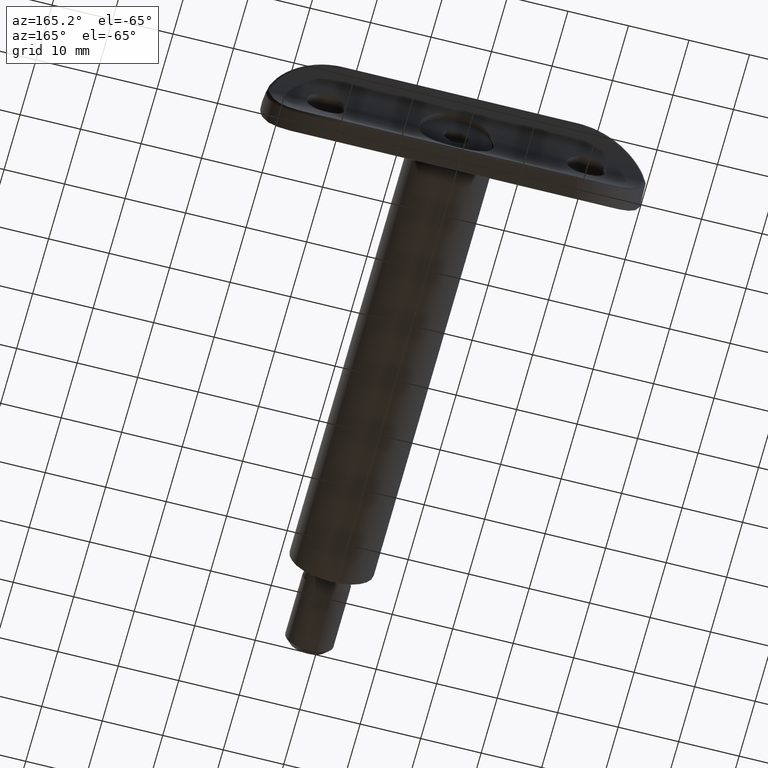
[diagram: clean part render]
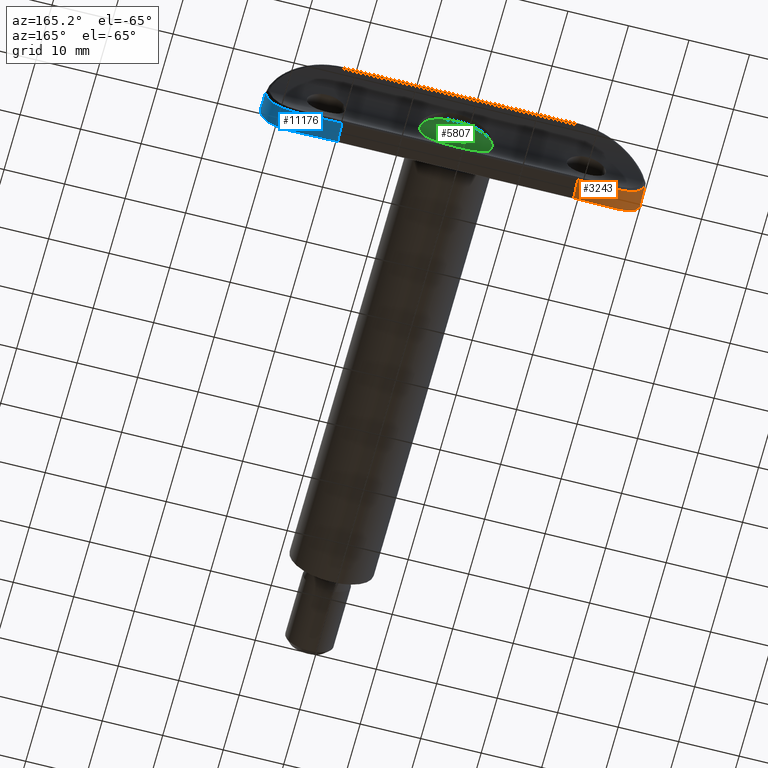
[diagram: same view with three faces highlighted in distinct colors, each labeled with its STEP entity id]
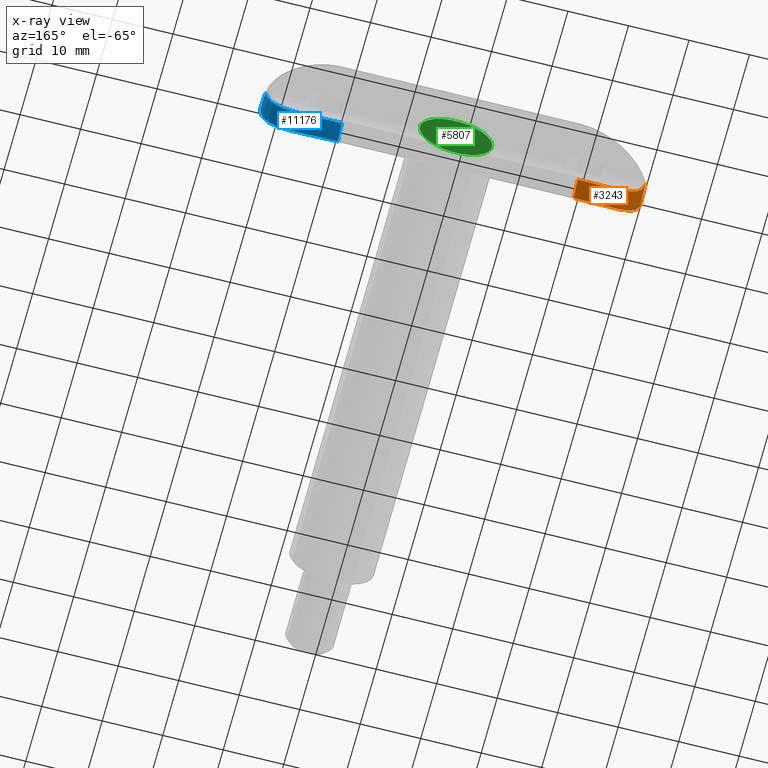
[diagram: x-ray of the same camera — body ghosted, the three highlighted faces saturated]
A machine part, auxiliary view with three faces highlighted in distinct colors.
The next image is the same camera in x-ray (body ghosted, the three faces saturated) — at least one of them is partly hidden behind the body in this view.
Their STEP definitions:

[orange] entity #3243 — the highlighted cylindrical surface (partial cylindrical patch) has radius 12 mm, axis along (-0, 0.8741, 0.4858).
#11 = CARTESIAN_POINT ( 'NONE',  ( -6.665760389367133800, 0.6098249306462646400, 28.62862387784112200 ) ) ;
#161 = CARTESIAN_POINT ( 'NONE',  ( -6.158843963928775100, -2.729662869301814800, 30.05830163374237100 ) ) ;
#163 = CARTESIAN_POINT ( 'NONE',  ( -2.905809991406901500, -0.2520860244392662000, 30.79258430663401900 ) ) ;
#437 = DIRECTION ( 'NONE',  ( 0.4858299595141704600, 0.8740533453047700800, -0.0000000000000000000 ) ) ;
#724 = CARTESIAN_POINT ( 'NONE',  ( -8.732631405510838700, 1.380105572080481300, 26.13792390336022800 ) ) ;
#1331 = CARTESIAN_POINT ( 'NONE',  ( -7.468358965609681400, -2.346049953370365600, 29.19099359684591400 ) ) ;
#1427 = CARTESIAN_POINT ( 'NONE',  ( -10.29759581758889200, 2.112088555418217600, 22.07087987615993200 ) ) ;
#1647 = CARTESIAN_POINT ( 'NONE',  ( -11.92859431294146000, -0.4292547332370194600, 21.11482056701557000 ) ) ;
#2049 = CARTESIAN_POINT ( 'NONE',  ( 1.609570849379558000E-015, -2.486856761535511900, 31.50000000000000000 ) ) ;
#2516 = CARTESIAN_POINT ( 'NONE',  ( -8.077189355929988300, -2.144204123385022400, 28.69694654420741000 ) ) ;
#2519 = CARTESIAN_POINT ( 'NONE',  ( -1.835189502875482500, -0.3711457551946625300, 31.09134747255644600 ) ) ;
#2528 = B_SPLINE_CURVE_WITH_KNOTS ( 'NONE', 3,
 ( #14187, #12949, #4734, #8330, #4790, #9551, #8274, #14088, #161, #2620, #1331, #2516, #10610, #3694, #8383, #11761, #7212, #13202, #6247, #5090, #8642, #1647, #2710, #3800 ),
 .UNSPECIFIED., .F., .F.,
 ( 4, 2, 2, 2, 2, 2, 2, 2, 2, 2, 2, 4 ),
 ( 2.761428510983103300E-018, 0.002407596472457986900, 0.003611394708686980600, 0.004815192944915973800, 0.007222789417373963800, 0.008426587653602961000, 0.009630385889831958100, 0.01083418412606095400, 0.01203798236228994900, 0.01444557883474794100, 0.01685317530720592900, 0.01926077177966392000 ),
 .UNSPECIFIED. ) ;
#2609 = DIRECTION ( 'NONE',  ( 0.4858299595141704100, 0.8740533453047699700, -0.0000000000000000000 ) ) ;
#2620 = CARTESIAN_POINT ( 'NONE',  ( -7.147371149447642400, -2.445773758848735400, 29.42307681136128400 ) ) ;
#2664 = EDGE_CURVE ( 'NONE', #14870, #8764, #5396, .T. ) ;
#2710 = CARTESIAN_POINT ( 'NONE',  ( -12.00000000000000400, -0.3891176290278253700, 20.31369094222388200 ) ) ;
#2903 = CARTESIAN_POINT ( 'NONE',  ( -7.894751655761197600, 1.043563230655474700, 27.32195453554993800 ) ) ;
#3243 = ADVANCED_FACE ( 'NONE', ( #9333 ), #4090, .T. ) ;
#3327 = CARTESIAN_POINT ( 'NONE',  ( 2.995621684029787500E-015, -3.499999999999999600, 31.50000000000000000 ) ) ;
#3380 = CARTESIAN_POINT ( 'NONE',  ( -9.569349463060191900, 1.752852787617586100, 24.53899358220071000 ) ) ;
#3433 = CARTESIAN_POINT ( 'NONE',  ( -4.567942503128782600, 0.05582271291679315900, 30.05491169464929200 ) ) ;
#3552 = EDGE_CURVE ( 'NONE', #8343, #14008, #2528, .T. ) ;
#3694 = CARTESIAN_POINT ( 'NONE',  ( -8.911261608662785600, -1.838321853592154600, 27.88239206832154700 ) ) ;
#3800 = CARTESIAN_POINT ( 'NONE',  ( -12.00000000000000700, -0.3891176290278207700, 19.50000000000000000 ) ) ;
#3980 = EDGE_LOOP ( 'NONE', ( #9834, #7622, #13824, #4207 ) ) ;
#4090 = CYLINDRICAL_SURFACE ( 'NONE', #6663, 12.00000000000000200 ) ;
#4207 = ORIENTED_EDGE ( 'NONE', *, *, #3552, .F. ) ;
#4414 = EDGE_CURVE ( 'NONE', #14008, #8764, #7863, .T. ) ;
#4734 = CARTESIAN_POINT ( 'NONE',  ( -1.613878791505604100, -3.459937399638179900, 31.43733599986672900 ) ) ;
#4790 = CARTESIAN_POINT ( 'NONE',  ( -3.186978305075533600, -3.296663330154676600, 31.15440249755115000 ) ) ;
#4793 = CARTESIAN_POINT ( 'NONE',  ( -1.471476261503990200, -0.4031192296362737800, 31.17588060939954500 ) ) ;
#5090 = CARTESIAN_POINT ( 'NONE',  ( -11.42949741348638200, -0.6987825248718139100, 23.47544721763575400 ) ) ;
#5396 = B_SPLINE_CURVE_WITH_KNOTS ( 'NONE', 3,
 ( #11707, #14032, #11550, #4793, #2519, #163, #8116, #3433, #11500, #12691, #5795, #11, #6459, #2903, #14520, #6221, #724, #6413, #3380, #5500, #6040, #14173, #1427, #14072, #14225, #11859 ),
 .UNSPECIFIED., .F., .F.,
 ( 4, 2, 2, 2, 2, 2, 2, 2, 2, 2, 2, 2, 4 ),
 ( 0.0000000000000000000, 0.001118234125172537300, 0.002236468250345073400, 0.004472936500690145000, 0.005591170625862681500, 0.006709404751035217900, 0.008945873001380291700, 0.01006410712655283000, 0.01118234125172537000, 0.01341880950207044800, 0.01453704362724298600, 0.01565527775241552400, 0.01789174600276060400 ),
 .UNSPECIFIED. ) ;
#5500 = CARTESIAN_POINT ( 'NONE',  ( -9.933564340798488600, 1.929111303165165400, 23.49922711695878200 ) ) ;
#5582 = CARTESIAN_POINT ( 'NONE',  ( 2.995621684029787500E-015, -3.499999999999999600, 31.50000000000000000 ) ) ;
#5591 = CARTESIAN_POINT ( 'NONE',  ( -10.53971119023871800, 2.238077944829623500, 19.50000000000000000 ) ) ;
#5795 = CARTESIAN_POINT ( 'NONE',  ( -5.807837735107587400, 0.3617548896867339200, 29.28748829787575400 ) ) ;
#6040 = CARTESIAN_POINT ( 'NONE',  ( -10.04062280470157400, 1.982199962630014400, 23.14366967859937300 ) ) ;
#6221 = CARTESIAN_POINT ( 'NONE',  ( -8.538757616669153400, 1.298744972214027800, 26.44274779239512400 ) ) ;
#6247 = CARTESIAN_POINT ( 'NONE',  ( -10.86486654361805800, -0.9843359645018935300, 24.95505419486225000 ) ) ;
#6413 = CARTESIAN_POINT ( 'NONE',  ( -9.269901498195483900, 1.612828249825283700, 25.19844563057117900 ) ) ;
#6459 = CARTESIAN_POINT ( 'NONE',  ( -7.186626295999051500, 0.7838569578975428400, 28.13755154511082100 ) ) ;
#6663 = AXIS2_PLACEMENT_3D ( 'NONE', #7334, #437, #11892 ) ;
#7212 = CARTESIAN_POINT ( 'NONE',  ( -9.882580253765651100, -1.437978920396825600, 26.65824030469761800 ) ) ;
#7334 = CARTESIAN_POINT ( 'NONE',  ( -1.511359856342760800, -6.219077143197870000, 19.50000000000000000 ) ) ;
#7622 = ORIENTED_EDGE ( 'NONE', *, *, #2664, .T. ) ;
#7752 = EDGE_CURVE ( 'NONE', #8343, #14870, #11431, .T. ) ;
#7758 = CARTESIAN_POINT ( 'NONE',  ( 1.160008762117916300E-015, -1.475628161315683400, 31.46975366199063400 ) ) ;
#7863 = LINE ( 'NONE', #10756, #12769 ) ;
#8116 = CARTESIAN_POINT ( 'NONE',  ( -3.589126953104931200, -0.1425766935508017400, 30.53490663537367700 ) ) ;
#8216 = CARTESIAN_POINT ( 'NONE',  ( 7.129970309379851900E-016, -0.4701362392625545400, 31.40937530504015700 ) ) ;
#8274 = CARTESIAN_POINT ( 'NONE',  ( -4.345683333910672600, -3.117644390435899000, 30.82586979659556200 ) ) ;
#8330 = CARTESIAN_POINT ( 'NONE',  ( -2.796109589762971700, -3.344419946068632600, 31.23832297120842600 ) ) ;
#8343 = VERTEX_POINT ( 'NONE', #3327 ) ;
#8370 = CARTESIAN_POINT ( 'NONE',  ( -12.00000000000000700, -0.3891176290278207700, 19.50000000000000000 ) ) ;
#8383 = CARTESIAN_POINT ( 'NONE',  ( -9.168815601873276900, -1.736688008828346300, 27.59147257706480600 ) ) ;
#8642 = CARTESIAN_POINT ( 'NONE',  ( -11.64506833623742700, -0.5832138593540825400, 22.69272106915794400 ) ) ;
#8764 = VERTEX_POINT ( 'NONE', #5591 ) ;
#9333 = FACE_OUTER_BOUND ( 'NONE', #3980, .T. ) ;
#9551 = CARTESIAN_POINT ( 'NONE',  ( -3.961919930534433000, -3.183324947430795900, 30.94830242344761800 ) ) ;
#9834 = ORIENTED_EDGE ( 'NONE', *, *, #7752, .T. ) ;
#10610 = CARTESIAN_POINT ( 'NONE',  ( -8.365447555507350000, -2.042077026027281100, 28.43512920070712700 ) ) ;
#10756 = CARTESIAN_POINT ( 'NONE',  ( -12.00000000000000200, -0.3891176290278242100, 19.50000000000000000 ) ) ;
#11431 =( BOUNDED_CURVE ( )  B_SPLINE_CURVE ( 3, ( #5582, #2049, #7758, #14729 ),
 .UNSPECIFIED., .F., .T. ) 
 B_SPLINE_CURVE_WITH_KNOTS ( ( 4, 4 ),
 ( 4.712388980384689700, 4.835365260207421300 ),
 .UNSPECIFIED. ) 
 CURVE ( )  GEOMETRIC_REPRESENTATION_ITEM ( )  RATIONAL_B_SPLINE_CURVE ( ( 1.000000000000000000, 0.9987401332329100000, 0.9987401332329100000, 1.000000000000000000 ) ) 
 REPRESENTATION_ITEM ( '' )  );
#11500 = CARTESIAN_POINT ( 'NONE',  ( -4.886493709250094900, 0.1276570117640371300, 29.87927491249999100 ) ) ;
#11550 = CARTESIAN_POINT ( 'NONE',  ( -0.7404109976856231300, -0.4496605161124915800, 31.31444628284846100 ) ) ;
#11707 = CARTESIAN_POINT ( 'NONE',  ( 7.129970309379851900E-016, -0.4701362392625545400, 31.40937530504015700 ) ) ;
#11761 = CARTESIAN_POINT ( 'NONE',  ( -9.653965207986141600, -1.536749814308947700, 26.98022621720532400 ) ) ;
#11859 = CARTESIAN_POINT ( 'NONE',  ( -10.53971119023871800, 2.238077944829623500, 19.50000000000000000 ) ) ;
#11892 = DIRECTION ( 'NONE',  ( -0.8740533453047699700, 0.4858299595141704100, 0.0000000000000000000 ) ) ;
#12691 = CARTESIAN_POINT ( 'NONE',  ( -5.507687913038743900, 0.2809070737397239600, 29.49489296990413600 ) ) ;
#12769 = VECTOR ( 'NONE', #2609, 1000.000000000000100 ) ;
#12949 = CARTESIAN_POINT ( 'NONE',  ( -0.8129412476029729300, -3.500000000000002200, 31.50000000000000000 ) ) ;
#13202 = CARTESIAN_POINT ( 'NONE',  ( -10.51579242464841000, -1.154463491023568500, 25.65865357391694000 ) ) ;
#13824 = ORIENTED_EDGE ( 'NONE', *, *, #4414, .F. ) ;
#14008 = VERTEX_POINT ( 'NONE', #8370 ) ;
#14032 = CARTESIAN_POINT ( 'NONE',  ( -0.3717157821171455700, -0.4643916539096149000, 31.36887278765310300 ) ) ;
#14072 = CARTESIAN_POINT ( 'NONE',  ( -10.47855176280992900, 2.205503992355605000, 20.98378448394306200 ) ) ;
#14088 = CARTESIAN_POINT ( 'NONE',  ( -5.458459083564780400, -2.901169967168793800, 30.40738950800777100 ) ) ;
#14173 = CARTESIAN_POINT ( 'NONE',  ( -10.22228452745750000, 2.073518088803384200, 22.43040518664165700 ) ) ;
#14187 = CARTESIAN_POINT ( 'NONE',  ( 2.995621684029787500E-015, -3.499999999999999600, 31.50000000000000000 ) ) ;
#14225 = CARTESIAN_POINT ( 'NONE',  ( -10.53971119023871900, 2.238077944829626600, 20.24777137648276000 ) ) ;
#14520 = CARTESIAN_POINT ( 'NONE',  ( -8.119630012388045200, 1.130367664769257300, 27.03523480616932400 ) ) ;
#14729 = CARTESIAN_POINT ( 'NONE',  ( 7.129970309379851900E-016, -0.4701362392625545400, 31.40937530504015700 ) ) ;
#14870 = VERTEX_POINT ( 'NONE', #8216 ) ;

[blue] entity #11176 — the highlighted cylindrical surface (partial cylindrical patch) has radius 12 mm, axis along (0, -0.8741, -0.4858).
#12 = CARTESIAN_POINT ( 'NONE',  ( -1.835189502875486800, -0.3711457551946608600, -31.09134747255645000 ) ) ;
#66 = CARTESIAN_POINT ( 'NONE',  ( -1.471476261503997600, -0.4031192296362751700, -31.17588060939954500 ) ) ;
#118 = CARTESIAN_POINT ( 'NONE',  ( -3.589126953104938300, -0.1425766935507997200, -30.53490663537369400 ) ) ;
#295 = CARTESIAN_POINT ( 'NONE',  ( -10.53971119023871800, 2.238077944829623100, -19.50000000000000000 ) ) ;
#664 = B_SPLINE_CURVE_WITH_KNOTS ( 'NONE', 3,
 ( #3306, #3411, #12570, #8006, #13758, #7959, #1003, #4520, #12615, #9131, #12670, #2189, #3359, #10280, #11427, #13812, #6838, #15018, #1106, #9220, #8363, #9326, #12980, #9425 ),
 .UNSPECIFIED., .F., .F.,
 ( 4, 2, 2, 2, 2, 2, 2, 2, 2, 2, 2, 4 ),
 ( 3.476216610979977100E-018, 0.002406580534152875300, 0.003609870801229310600, 0.004813161068305746300, 0.007219741602458626400, 0.008423031869535066400, 0.009626322136611503000, 0.01203290267076437100, 0.01443948320491723900, 0.01564277347199367200, 0.01684606373907010500, 0.01925264427322297800 ),
 .UNSPECIFIED. ) ;
#776 = CYLINDRICAL_SURFACE ( 'NONE', #13109, 12.00000000000000000 ) ;
#981 = CARTESIAN_POINT ( 'NONE',  ( -10.22228452745750400, 2.073518088803386000, -22.43040518664165000 ) ) ;
#1003 = CARTESIAN_POINT ( 'NONE',  ( -11.29067707203921100, -0.7689707214613790100, -23.83865606415823300 ) ) ;
#1099 = VERTEX_POINT ( 'NONE', #4711 ) ;
#1106 = CARTESIAN_POINT ( 'NONE',  ( -3.975921368411834400, -3.181057464200420800, -30.94410955837537000 ) ) ;
#1130 = CARTESIAN_POINT ( 'NONE',  ( -5.807837735107590900, 0.3617548896867360300, -29.28748829787575400 ) ) ;
#1726 = CARTESIAN_POINT ( 'NONE',  ( -9.269901498195489300, 1.612828249825284600, -25.19844563057117900 ) ) ;
#2189 = CARTESIAN_POINT ( 'NONE',  ( -9.174398946052685100, -1.734467328778706900, -27.58503671903728000 ) ) ;
#2211 = CARTESIAN_POINT ( 'NONE',  ( -10.53971119023871800, 2.238077944829623100, -19.50000000000000000 ) ) ;
#2332 = B_SPLINE_CURVE_WITH_KNOTS ( 'NONE', 3,
 ( #2211, #4450, #12545, #7941, #981, #9106, #5522, #2491, #1726, #14705, #9392, #12692, #10408, #4685, #11604, #1130, #12902, #7111, #8117, #118, #2520, #12, #66, #9449, #8170, #3645 ),
 .UNSPECIFIED., .F., .F.,
 ( 4, 2, 2, 2, 2, 2, 2, 2, 2, 2, 2, 2, 4 ),
 ( 0.0000000000000000000, 0.002211687512370214800, 0.003317531268555321900, 0.004423375024740429500, 0.006635062537110645600, 0.007740906293295753700, 0.008846750049480862600, 0.01105843756185108000, 0.01216428131803618800, 0.01327012507422129600, 0.01548181258659150900, 0.01658765634277661900, 0.01769350009896172500 ),
 .UNSPECIFIED. ) ;
#2491 = CARTESIAN_POINT ( 'NONE',  ( -9.569349463060195400, 1.752852787617590800, -24.53899358220071700 ) ) ;
#2520 = CARTESIAN_POINT ( 'NONE',  ( -2.905809991406906000, -0.2520860244392645300, -30.79258430663402300 ) ) ;
#2992 =( BOUNDED_CURVE ( )  B_SPLINE_CURVE ( 3, ( #11050, #14960, #5568, #8926 ),
 .UNSPECIFIED., .F., .T. ) 
 B_SPLINE_CURVE_WITH_KNOTS ( ( 4, 4 ),
 ( 1.447820046972164900, 1.570796326794896600 ),
 .UNSPECIFIED. ) 
 CURVE ( )  GEOMETRIC_REPRESENTATION_ITEM ( )  RATIONAL_B_SPLINE_CURVE ( ( 1.000000000000000000, 0.9987401332329100000, 0.9987401332329100000, 1.000000000000000000 ) ) 
 REPRESENTATION_ITEM ( '' )  );
#3306 = CARTESIAN_POINT ( 'NONE',  ( -12.00000000000000700, -0.3891176290278207700, -19.50000000000000400 ) ) ;
#3359 = CARTESIAN_POINT ( 'NONE',  ( -8.916507318172458300, -1.836285184458887900, -27.87664932174586200 ) ) ;
#3411 = CARTESIAN_POINT ( 'NONE',  ( -12.00000000000000200, -0.3891176290278237600, -20.31369584259641300 ) ) ;
#3502 = LINE ( 'NONE', #10568, #9110 ) ;
#3503 = DIRECTION ( 'NONE',  ( -0.4858299595141704100, -0.8740533453047699700, -0.0000000000000000000 ) ) ;
#3645 = CARTESIAN_POINT ( 'NONE',  ( -4.165912745246785100E-015, -0.4701362392625519400, -31.40937530504016500 ) ) ;
#3910 = EDGE_CURVE ( 'NONE', #7657, #1099, #2992, .T. ) ;
#4450 = CARTESIAN_POINT ( 'NONE',  ( -10.53971119023871200, 2.238077944829627100, -20.24777137648276300 ) ) ;
#4520 = CARTESIAN_POINT ( 'NONE',  ( -10.86687449944537300, -0.9833561896143341300, -24.95091473416315600 ) ) ;
#4685 = CARTESIAN_POINT ( 'NONE',  ( -7.186626295999050600, 0.7838569578975430600, -28.13755154511081000 ) ) ;
#4711 = CARTESIAN_POINT ( 'NONE',  ( -5.975428329596222400E-016, -3.499999999999999600, -31.50000000000000000 ) ) ;
#4725 = EDGE_LOOP ( 'NONE', ( #12044, #7360, #5253, #14941 ) ) ;
#5253 = ORIENTED_EDGE ( 'NONE', *, *, #3910, .T. ) ;
#5375 = EDGE_CURVE ( 'NONE', #9900, #7657, #2332, .T. ) ;
#5476 = CARTESIAN_POINT ( 'NONE',  ( -4.165912745246785100E-015, -0.4701362392625519400, -31.40937530504016500 ) ) ;
#5522 = CARTESIAN_POINT ( 'NONE',  ( -9.933564340798483300, 1.929111303165169200, -23.49922711695876700 ) ) ;
#5568 = CARTESIAN_POINT ( 'NONE',  ( -3.269338926805214500E-015, -2.486856761535503900, -31.50000000000000000 ) ) ;
#5637 = DIRECTION ( 'NONE',  ( -0.4858299595141704600, -0.8740533453047700800, 0.0000000000000000000 ) ) ;
#6838 = CARTESIAN_POINT ( 'NONE',  ( -5.463922679457850200, -2.899855688073363700, -30.40472026188329100 ) ) ;
#6895 = CARTESIAN_POINT ( 'NONE',  ( 10.48864014365724600, 15.37004048582995000, -19.50000000000000000 ) ) ;
#7111 = CARTESIAN_POINT ( 'NONE',  ( -4.886493709250094900, 0.1276570117640421500, -29.87927491249998700 ) ) ;
#7303 = CARTESIAN_POINT ( 'NONE',  ( -12.00000000000000700, -0.3891176290278207700, -19.50000000000000400 ) ) ;
#7360 = ORIENTED_EDGE ( 'NONE', *, *, #5375, .T. ) ;
#7657 = VERTEX_POINT ( 'NONE', #5476 ) ;
#7941 = CARTESIAN_POINT ( 'NONE',  ( -10.29759581758889400, 2.112088555418218900, -22.07087987615993200 ) ) ;
#7959 = CARTESIAN_POINT ( 'NONE',  ( -11.41587513011002000, -0.7039332646957846600, -23.45570776623293000 ) ) ;
#8006 = CARTESIAN_POINT ( 'NONE',  ( -11.71699478268041800, -0.5441595704861782500, -22.29309573292401600 ) ) ;
#8117 = CARTESIAN_POINT ( 'NONE',  ( -4.567942503128787000, 0.05582271291679522700, -30.05491169464929200 ) ) ;
#8170 = CARTESIAN_POINT ( 'NONE',  ( -0.3717157821171792600, -0.4643916539096182800, -31.36887278765310700 ) ) ;
#8215 = FACE_OUTER_BOUND ( 'NONE', #4725, .T. ) ;
#8363 = CARTESIAN_POINT ( 'NONE',  ( -2.804642605329985100, -3.343479015047385400, -31.23668300403215200 ) ) ;
#8926 = CARTESIAN_POINT ( 'NONE',  ( -5.975428329596222400E-016, -3.499999999999999600, -31.50000000000000000 ) ) ;
#9106 = CARTESIAN_POINT ( 'NONE',  ( -10.04062280470157700, 1.982199962630015700, -23.14366967859936300 ) ) ;
#9110 = VECTOR ( 'NONE', #3503, 1000.000000000000100 ) ;
#9131 = CARTESIAN_POINT ( 'NONE',  ( -9.890151245574543300, -1.434654235787247600, -26.64699636764817100 ) ) ;
#9220 = CARTESIAN_POINT ( 'NONE',  ( -3.199605881044096800, -3.295028801910499600, -31.15149741152382700 ) ) ;
#9326 = CARTESIAN_POINT ( 'NONE',  ( -1.616414263079185100, -3.459901341102897800, -31.43731128375658900 ) ) ;
#9392 = CARTESIAN_POINT ( 'NONE',  ( -8.538757616669148100, 1.298744972214027000, -26.44274779239511400 ) ) ;
#9425 = CARTESIAN_POINT ( 'NONE',  ( -5.975428329596222400E-016, -3.499999999999999600, -31.50000000000000000 ) ) ;
#9449 = CARTESIAN_POINT ( 'NONE',  ( -0.7404109976856301200, -0.4496605161124934100, -31.31444628284844400 ) ) ;
#9685 = EDGE_CURVE ( 'NONE', #13935, #1099, #664, .T. ) ;
#9900 = VERTEX_POINT ( 'NONE', #295 ) ;
#10280 = CARTESIAN_POINT ( 'NONE',  ( -8.099404966363247000, -2.141546448550109400, -28.70539369568060200 ) ) ;
#10408 = CARTESIAN_POINT ( 'NONE',  ( -7.894751655761195900, 1.043563230655475400, -27.32195453554993800 ) ) ;
#10568 = CARTESIAN_POINT ( 'NONE',  ( -12.00000000000000200, -0.3891176290278256000, -19.50000000000000000 ) ) ;
#11050 = CARTESIAN_POINT ( 'NONE',  ( -4.165912745246785100E-015, -0.4701362392625519400, -31.40937530504016500 ) ) ;
#11176 = ADVANCED_FACE ( 'NONE', ( #8215 ), #776, .T. ) ;
#11427 = CARTESIAN_POINT ( 'NONE',  ( -7.497033304171731400, -2.344925040722428000, -29.19690548182576300 ) ) ;
#11604 = CARTESIAN_POINT ( 'NONE',  ( -6.665760389367135600, 0.6098249306462666400, -28.62862387784112200 ) ) ;
#12044 = ORIENTED_EDGE ( 'NONE', *, *, #14506, .F. ) ;
#12545 = CARTESIAN_POINT ( 'NONE',  ( -10.47855176280993200, 2.205503992355606300, -20.98378448394305500 ) ) ;
#12570 = CARTESIAN_POINT ( 'NONE',  ( -11.92859548616417700, -0.4292482158758177400, -21.11347366024902800 ) ) ;
#12615 = CARTESIAN_POINT ( 'NONE',  ( -10.51842810678145000, -1.153150254458435800, -25.65304723848730700 ) ) ;
#12670 = CARTESIAN_POINT ( 'NONE',  ( -9.661430124385194800, -1.533590909220056600, -26.97020615263073800 ) ) ;
#12692 = CARTESIAN_POINT ( 'NONE',  ( -8.119630012388043400, 1.130367664769256400, -27.03523480616932100 ) ) ;
#12902 = CARTESIAN_POINT ( 'NONE',  ( -5.507687913038745700, 0.2809070737397288400, -29.49489296990413600 ) ) ;
#12980 = CARTESIAN_POINT ( 'NONE',  ( -0.8132883673673631000, -3.499999999999998700, -31.49999999999999300 ) ) ;
#13109 = AXIS2_PLACEMENT_3D ( 'NONE', #6895, #5637, #13769 ) ;
#13758 = CARTESIAN_POINT ( 'NONE',  ( -11.62887820642736400, -0.5915967544966716000, -22.68293612948989900 ) ) ;
#13769 = DIRECTION ( 'NONE',  ( 0.8740533453047699700, -0.4858299595141704600, 0.0000000000000000000 ) ) ;
#13812 = CARTESIAN_POINT ( 'NONE',  ( -6.166834720918711100, -2.727790392386203700, -30.05461524013827600 ) ) ;
#13935 = VERTEX_POINT ( 'NONE', #7303 ) ;
#14506 = EDGE_CURVE ( 'NONE', #9900, #13935, #3502, .T. ) ;
#14705 = CARTESIAN_POINT ( 'NONE',  ( -8.732631405510836900, 1.380105572080482000, -26.13792390336022800 ) ) ;
#14941 = ORIENTED_EDGE ( 'NONE', *, *, #9685, .F. ) ;
#14960 = CARTESIAN_POINT ( 'NONE',  ( -3.718901014066856800E-015, -1.475628161315674100, -31.46975366199063700 ) ) ;
#15018 = CARTESIAN_POINT ( 'NONE',  ( -4.354802112542866900, -3.115994167807660800, -30.82274288943988300 ) ) ;

[green] entity #5807 — the highlighted planar face has unit normal (-0, 1, -0).
#172 = ORIENTED_EDGE ( 'NONE', *, *, #1790, .T. ) ;
#407 = DIRECTION ( 'NONE',  ( -1.000000000000000000, 0.0000000000000000000, 0.0000000000000000000 ) ) ;
#421 = ORIENTED_EDGE ( 'NONE', *, *, #488, .F. ) ;
#488 = EDGE_CURVE ( 'NONE', #1836, #12290, #12099, .T. ) ;
#853 = CARTESIAN_POINT ( 'NONE',  ( 1.154700538379251700, 1.999999999999999100, 0.0000000000000000000 ) ) ;
#1790 = EDGE_CURVE ( 'NONE', #13278, #13278, #7354, .T. ) ;
#1836 = VERTEX_POINT ( 'NONE', #10634 ) ;
#2060 = FACE_BOUND ( 'NONE', #5797, .T. ) ;
#2479 = CARTESIAN_POINT ( 'NONE',  ( -1.154700538379252400, 1.999999999999999600, 0.0000000000000000000 ) ) ;
#2554 = CARTESIAN_POINT ( 'NONE',  ( -2.309401076758504700, -1.752598683377171700E-015, 0.0000000000000000000 ) ) ;
#2580 = ORIENTED_EDGE ( 'NONE', *, *, #5915, .F. ) ;
#2598 = VECTOR ( 'NONE', #7198, 1000.000000000000100 ) ;
#2648 = CARTESIAN_POINT ( 'NONE',  ( -2.309401076758504700, -1.734723475976807100E-015, -7.347880794884121700E-016 ) ) ;
#2854 = VECTOR ( 'NONE', #4805, 1000.000000000000000 ) ;
#2960 = LINE ( 'NONE', #2554, #2598 ) ;
#3059 = EDGE_CURVE ( 'NONE', #5753, #1836, #5890, .T. ) ;
#3111 = VERTEX_POINT ( 'NONE', #2479 ) ;
#3214 = CARTESIAN_POINT ( 'NONE',  ( 0.0000000000000000000, 6.000000000000000000, 0.0000000000000000000 ) ) ;
#3508 = CARTESIAN_POINT ( 'NONE',  ( -1.154700538379252400, 1.999999999999999600, 0.0000000000000000000 ) ) ;
#3721 = LINE ( 'NONE', #14425, #9669 ) ;
#3931 = DIRECTION ( 'NONE',  ( -0.0000000000000000000, 1.224646799147353200E-016, -1.000000000000000000 ) ) ;
#4058 = LINE ( 'NONE', #3508, #10757 ) ;
#4668 = EDGE_CURVE ( 'NONE', #12290, #11745, #3721, .T. ) ;
#4805 = DIRECTION ( 'NONE',  ( -0.5000000000000001100, -0.8660254037844386000, -0.0000000000000000000 ) ) ;
#5068 = VERTEX_POINT ( 'NONE', #2648 ) ;
#5301 = LINE ( 'NONE', #15074, #10190 ) ;
#5515 = DIRECTION ( 'NONE',  ( 0.4999999999999998900, -0.8660254037844387100, 0.0000000000000000000 ) ) ;
#5753 = VERTEX_POINT ( 'NONE', #853 ) ;
#5797 = EDGE_LOOP ( 'NONE', ( #2580, #6485, #421, #10759, #8920, #8529 ) ) ;
#5807 = ADVANCED_FACE ( 'NONE', ( #2060, #13471 ), #10132, .T. ) ;
#5890 = LINE ( 'NONE', #9022, #8618 ) ;
#5915 = EDGE_CURVE ( 'NONE', #11745, #5068, #5301, .T. ) ;
#6222 = CARTESIAN_POINT ( 'NONE',  ( 0.0000000000000000000, 1.799711739194228900E-031, -1.469576158976823800E-015 ) ) ;
#6485 = ORIENTED_EDGE ( 'NONE', *, *, #4668, .F. ) ;
#6930 = EDGE_LOOP ( 'NONE', ( #172 ) ) ;
#7198 = DIRECTION ( 'NONE',  ( 0.5000000000000001100, 0.8660254037844386000, 0.0000000000000000000 ) ) ;
#7354 = CIRCLE ( 'NONE', #9860, 6.000000000000000000 ) ;
#7440 = CARTESIAN_POINT ( 'NONE',  ( 2.309401076758502500, 5.022240126475751500E-017, 0.0000000000000000000 ) ) ;
#8529 = ORIENTED_EDGE ( 'NONE', *, *, #12396, .F. ) ;
#8618 = VECTOR ( 'NONE', #5515, 1000.000000000000000 ) ;
#8920 = ORIENTED_EDGE ( 'NONE', *, *, #14134, .F. ) ;
#9022 = CARTESIAN_POINT ( 'NONE',  ( 1.154700538379251700, 1.999999999999999100, 0.0000000000000000000 ) ) ;
#9442 = CARTESIAN_POINT ( 'NONE',  ( -1.154700538379255000, -2.000000000000000000, 0.0000000000000000000 ) ) ;
#9669 = VECTOR ( 'NONE', #407, 1000.000000000000000 ) ;
#9860 = AXIS2_PLACEMENT_3D ( 'NONE', #6222, #3931, #14361 ) ;
#10132 = PLANE ( 'NONE',  #11148 ) ;
#10190 = VECTOR ( 'NONE', #12522, 1000.000000000000100 ) ;
#10634 = CARTESIAN_POINT ( 'NONE',  ( 2.309401076758502500, 5.022240126475751500E-017, 0.0000000000000000000 ) ) ;
#10757 = VECTOR ( 'NONE', #11567, 1000.000000000000000 ) ;
#10759 = ORIENTED_EDGE ( 'NONE', *, *, #3059, .F. ) ;
#11148 = AXIS2_PLACEMENT_3D ( 'NONE', #3214, #11298, #12473 ) ;
#11298 = DIRECTION ( 'NONE',  ( -0.0000000000000000000, 1.224646799147353200E-016, -1.000000000000000000 ) ) ;
#11567 = DIRECTION ( 'NONE',  ( 1.000000000000000000, -1.877893248421448300E-016, 0.0000000000000000000 ) ) ;
#11745 = VERTEX_POINT ( 'NONE', #9442 ) ;
#11812 = CARTESIAN_POINT ( 'NONE',  ( 0.0000000000000000000, 6.000000000000000000, -7.347880794884117800E-016 ) ) ;
#12099 = LINE ( 'NONE', #7440, #2854 ) ;
#12290 = VERTEX_POINT ( 'NONE', #13026 ) ;
#12396 = EDGE_CURVE ( 'NONE', #5068, #3111, #2960, .T. ) ;
#12473 = DIRECTION ( 'NONE',  ( 0.0000000000000000000, 1.000000000000000000, 1.224646799147353200E-016 ) ) ;
#12522 = DIRECTION ( 'NONE',  ( -0.4999999999999997800, 0.8660254037844388200, 0.0000000000000000000 ) ) ;
#13026 = CARTESIAN_POINT ( 'NONE',  ( 1.154700538379250600, -2.000000000000000000, -0.0000000000000000000 ) ) ;
#13278 = VERTEX_POINT ( 'NONE', #11812 ) ;
#13471 = FACE_OUTER_BOUND ( 'NONE', #6930, .T. ) ;
#14134 = EDGE_CURVE ( 'NONE', #3111, #5753, #4058, .T. ) ;
#14361 = DIRECTION ( 'NONE',  ( 0.0000000000000000000, 1.000000000000000000, 1.224646799147353200E-016 ) ) ;
#14425 = CARTESIAN_POINT ( 'NONE',  ( 1.154700538379250600, -2.000000000000000000, -0.0000000000000000000 ) ) ;
#15074 = CARTESIAN_POINT ( 'NONE',  ( -1.154700538379255000, -2.000000000000000000, 0.0000000000000000000 ) ) ;